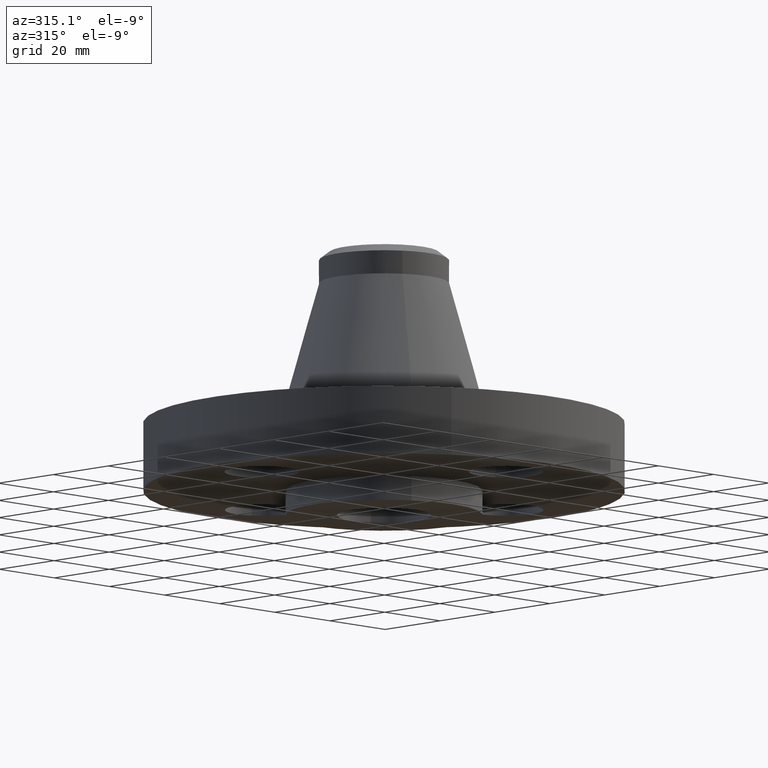
[diagram: clean part render]
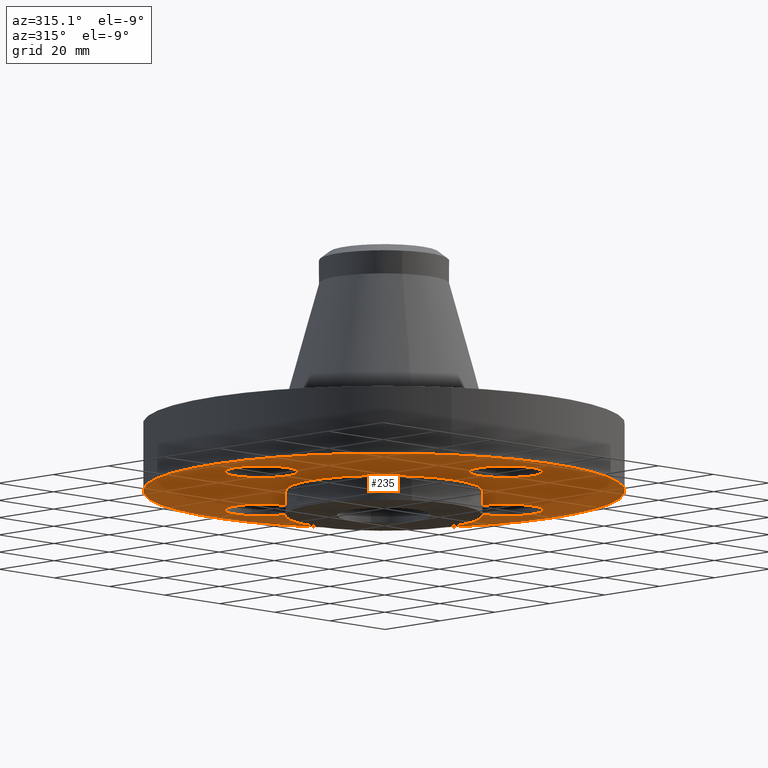
[diagram: same view with one face highlighted and labeled with its STEP entity id]
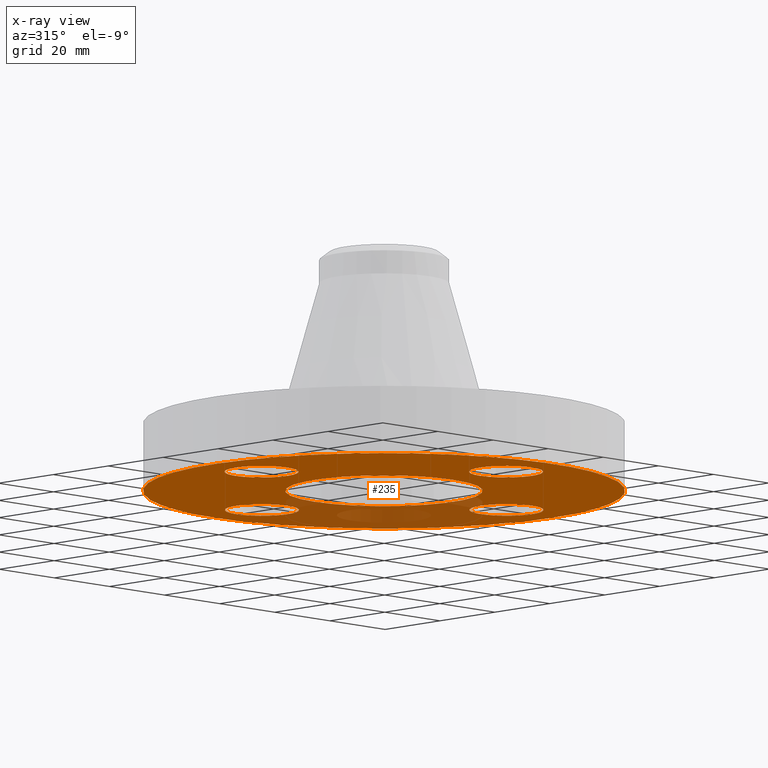
[diagram: x-ray of the same camera — body ghosted, the highlighted face saturated]
A machine part, auxiliary view. The second image highlights one B-rep face of the part: STEP entity #235.
The next image is the same camera in x-ray: the body ghosted, the highlighted face saturated — about 21% of this face is hidden behind the body in this view.
In plain terms, the highlighted planar face has unit normal (0, 0, -1).
Its self-contained STEP definition (entity closure, byte-faithful):
#114=AXIS2_PLACEMENT_3D('Circle Axis2P3D',#112,#113,$) ;
#139=AXIS2_PLACEMENT_3D('Plane Axis2P3D',#136,#137,#138) ;
#143=AXIS2_PLACEMENT_3D('Circle Axis2P3D',#141,#142,$) ;
#152=AXIS2_PLACEMENT_3D('Circle Axis2P3D',#150,#151,$) ;
#165=AXIS2_PLACEMENT_3D('Circle Axis2P3D',#163,#164,$) ;
#174=AXIS2_PLACEMENT_3D('Circle Axis2P3D',#172,#173,$) ;
#183=AXIS2_PLACEMENT_3D('Circle Axis2P3D',#181,#182,$) ;
#192=AXIS2_PLACEMENT_3D('Circle Axis2P3D',#190,#191,$) ;
#201=AXIS2_PLACEMENT_3D('Circle Axis2P3D',#199,#200,$) ;
#210=AXIS2_PLACEMENT_3D('Circle Axis2P3D',#208,#209,$) ;
#219=AXIS2_PLACEMENT_3D('Circle Axis2P3D',#217,#218,$) ;
#228=AXIS2_PLACEMENT_3D('Circle Axis2P3D',#226,#227,$) ;
#44=CARTESIAN_POINT('Vertex',(1.42090653927,0.179784576959,0.)) ;
#50=CARTESIAN_POINT('Control Point',(1.4209065393,0.179784576977,-1.39870617275E-016)) ;
#51=CARTESIAN_POINT('Control Point',(1.44914703461,0.231478456903,-1.63867519728E-012)) ;
#52=CARTESIAN_POINT('Control Point',(1.48753759951,0.27762732854,-3.27721052395E-012)) ;
#53=CARTESIAN_POINT('Control Point',(1.53463466834,0.315564920645,-4.91571088297E-012)) ;
#54=CARTESIAN_POINT('Control Point',(1.64116640576,0.370929207243,-8.1927815363E-012)) ;
#55=CARTESIAN_POINT('Control Point',(1.76072322347,0.38190110985,-1.14698521896E-011)) ;
#56=CARTESIAN_POINT('Control Point',(1.82085180885,0.375424381748,-1.31083525487E-011)) ;
#57=CARTESIAN_POINT('Control Point',(1.93532958528,0.339243530298,-1.6385423202E-011)) ;
#58=CARTESIAN_POINT('Control Point',(2.02762732855,0.262462400496,-1.96624938553E-011)) ;
#59=CARTESIAN_POINT('Control Point',(2.06556492066,0.215365331668,-2.13009942143E-011)) ;
#60=CARTESIAN_POINT('Control Point',(2.12092920725,0.108833594252,-2.45780648677E-011)) ;
#61=CARTESIAN_POINT('Control Point',(2.13190110986,-0.0107232234562,-2.7855135521E-011)) ;
#62=CARTESIAN_POINT('Control Point',(2.12542438176,-0.0708518088378,-2.949363588E-011)) ;
#63=CARTESIAN_POINT('Control Point',(2.10733395603,-0.128090697051,-3.11321712067E-011)) ;
#64=CARTESIAN_POINT('Control Point',(2.07909346072,-0.179784576977,-3.27707065334E-011)) ;
#65=CARTESIAN_POINT('Vertex',(2.07909346072,-0.179784576977,-3.27707065334E-011)) ;
#112=CARTESIAN_POINT('Axis2P3D Location',(1.75000000001,0.,-3.27707065334E-011)) ;
#136=CARTESIAN_POINT('Axis2P3D Location',(0.,1.,0.)) ;
#141=CARTESIAN_POINT('Axis2P3D Location',(-8.39223703654E-016,-1.46666930569E-011,0.)) ;
#145=CARTESIAN_POINT('Vertex',(-1.1697983142,-2.14130145102,3.34392880839E-011)) ;
#147=CARTESIAN_POINT('Vertex',(1.1697983142,2.14130145102,3.34392880839E-011)) ;
#150=CARTESIAN_POINT('Axis2P3D Location',(8.39223703654E-016,-1.46661335744E-011,0.)) ;
#163=CARTESIAN_POINT('Axis2P3D Location',(2.79741234551E-016,-1.46664133157E-011,0.)) ;
#167=CARTESIAN_POINT('Vertex',(0.479425538595,0.87758256187,0.)) ;
#169=CARTESIAN_POINT('Vertex',(-0.479425538605,-0.87758256189,3.34392880839E-011)) ;
#172=CARTESIAN_POINT('Axis2P3D Location',(-2.79741234551E-016,-1.46664133157E-011,0.)) ;
#181=CARTESIAN_POINT('Axis2P3D Location',(-4.36653687836E-011,-1.75,0.)) ;
#185=CARTESIAN_POINT('Vertex',(0.179784576973,-1.42090653929,0.)) ;
#187=CARTESIAN_POINT('Vertex',(-0.179784576973,-2.07909346076,0.)) ;
#190=CARTESIAN_POINT('Axis2P3D Location',(1.28118688012E-011,-1.75000000003,0.)) ;
#199=CARTESIAN_POINT('Axis2P3D Location',(-1.75,-1.85454451446E-012,0.)) ;
#203=CARTESIAN_POINT('Vertex',(-1.42090653927,-0.179784576988,0.)) ;
#205=CARTESIAN_POINT('Vertex',(-2.07909346074,0.179784576959,0.)) ;
#208=CARTESIAN_POINT('Axis2P3D Location',(-1.75000000001,-2.74782821169E-011,0.)) ;
#217=CARTESIAN_POINT('Axis2P3D Location',(-3.49676543189E-017,1.75000000003,0.)) ;
#221=CARTESIAN_POINT('Vertex',(-0.179784576973,1.42090653933,0.)) ;
#223=CARTESIAN_POINT('Vertex',(0.179784576973,2.07909346073,0.)) ;
#226=CARTESIAN_POINT('Axis2P3D Location',(3.49676543189E-017,1.75000000003,0.)) ;
#113=DIRECTION('Axis2P3D Direction',(0.,-0.,-0.0393700787402)) ;
#137=DIRECTION('Axis2P3D Direction',(0.,0.,-0.0393700787402)) ;
#138=DIRECTION('Axis2P3D XDirection',(0.0393700787402,0.,0.)) ;
#142=DIRECTION('Axis2P3D Direction',(0.,0.,-0.0393700787402)) ;
#151=DIRECTION('Axis2P3D Direction',(0.,0.,-0.0393700787402)) ;
#164=DIRECTION('Axis2P3D Direction',(0.,0.,-0.0393700787402)) ;
#173=DIRECTION('Axis2P3D Direction',(0.,0.,-0.0393700787402)) ;
#182=DIRECTION('Axis2P3D Direction',(0.,0.,-0.0393700787402)) ;
#191=DIRECTION('Axis2P3D Direction',(0.,0.,-0.0393700787402)) ;
#200=DIRECTION('Axis2P3D Direction',(0.,0.,-0.0393700787402)) ;
#209=DIRECTION('Axis2P3D Direction',(0.,0.,-0.0393700787402)) ;
#218=DIRECTION('Axis2P3D Direction',(0.,0.,-0.0393700787402)) ;
#227=DIRECTION('Axis2P3D Direction',(0.,0.,-0.0393700787402)) ;
#156=ORIENTED_EDGE('',*,*,#149,.T.) ;
#157=ORIENTED_EDGE('',*,*,#154,.T.) ;
#160=ORIENTED_EDGE('',*,*,#116,.F.) ;
#161=ORIENTED_EDGE('',*,*,#67,.F.) ;
#178=ORIENTED_EDGE('',*,*,#171,.F.) ;
#179=ORIENTED_EDGE('',*,*,#176,.F.) ;
#196=ORIENTED_EDGE('',*,*,#189,.F.) ;
#197=ORIENTED_EDGE('',*,*,#194,.F.) ;
#214=ORIENTED_EDGE('',*,*,#207,.F.) ;
#215=ORIENTED_EDGE('',*,*,#212,.F.) ;
#232=ORIENTED_EDGE('',*,*,#225,.F.) ;
#233=ORIENTED_EDGE('',*,*,#230,.F.) ;
#162=FACE_BOUND('',#159,.T.) ;
#180=FACE_BOUND('',#177,.T.) ;
#198=FACE_BOUND('',#195,.T.) ;
#216=FACE_BOUND('',#213,.T.) ;
#234=FACE_BOUND('',#231,.T.) ;
#235=ADVANCED_FACE('PartBody',(#158,#162,#180,#198,#216,#234),#140,.T.) ;
#49=B_SPLINE_CURVE_WITH_KNOTS('',5,(#50,#51,#52,#53,#54,#55,#56,#57,#58,#59,#60,#61,#62,#63,#64),.UNSPECIFIED.,.F.,.U.,(6,3,3,3,6),(-14.9618350128,-7.48091750638,0.,7.48091750638,14.9618350128),.UNSPECIFIED.) ;
#115=CIRCLE('generated circle',#114,0.375000000001) ;
#144=CIRCLE('generated circle',#143,2.44) ;
#153=CIRCLE('generated circle',#152,2.44) ;
#166=CIRCLE('generated circle',#165,0.999999999991) ;
#175=CIRCLE('generated circle',#174,0.999999999991) ;
#184=CIRCLE('generated circle',#183,0.375000000021) ;
#193=CIRCLE('generated circle',#192,0.375000000021) ;
#202=CIRCLE('generated circle',#201,0.375000000021) ;
#211=CIRCLE('generated circle',#210,0.375000000021) ;
#220=CIRCLE('generated circle',#219,0.374999999988) ;
#229=CIRCLE('generated circle',#228,0.374999999988) ;
#67=EDGE_CURVE('',#45,#66,#49,.T.) ;
#116=EDGE_CURVE('',#66,#45,#115,.T.) ;
#149=EDGE_CURVE('',#146,#148,#144,.T.) ;
#154=EDGE_CURVE('',#148,#146,#153,.T.) ;
#171=EDGE_CURVE('',#168,#170,#166,.T.) ;
#176=EDGE_CURVE('',#170,#168,#175,.T.) ;
#189=EDGE_CURVE('',#186,#188,#184,.T.) ;
#194=EDGE_CURVE('',#188,#186,#193,.T.) ;
#207=EDGE_CURVE('',#204,#206,#202,.T.) ;
#212=EDGE_CURVE('',#206,#204,#211,.T.) ;
#225=EDGE_CURVE('',#222,#224,#220,.T.) ;
#230=EDGE_CURVE('',#224,#222,#229,.T.) ;
#155=EDGE_LOOP('',(#156,#157)) ;
#159=EDGE_LOOP('',(#160,#161)) ;
#177=EDGE_LOOP('',(#178,#179)) ;
#195=EDGE_LOOP('',(#196,#197)) ;
#213=EDGE_LOOP('',(#214,#215)) ;
#231=EDGE_LOOP('',(#232,#233)) ;
#158=FACE_OUTER_BOUND('',#155,.T.) ;
#140=PLANE('',#139) ;
#45=VERTEX_POINT('',#44) ;
#66=VERTEX_POINT('',#65) ;
#146=VERTEX_POINT('',#145) ;
#148=VERTEX_POINT('',#147) ;
#168=VERTEX_POINT('',#167) ;
#170=VERTEX_POINT('',#169) ;
#186=VERTEX_POINT('',#185) ;
#188=VERTEX_POINT('',#187) ;
#204=VERTEX_POINT('',#203) ;
#206=VERTEX_POINT('',#205) ;
#222=VERTEX_POINT('',#221) ;
#224=VERTEX_POINT('',#223) ;